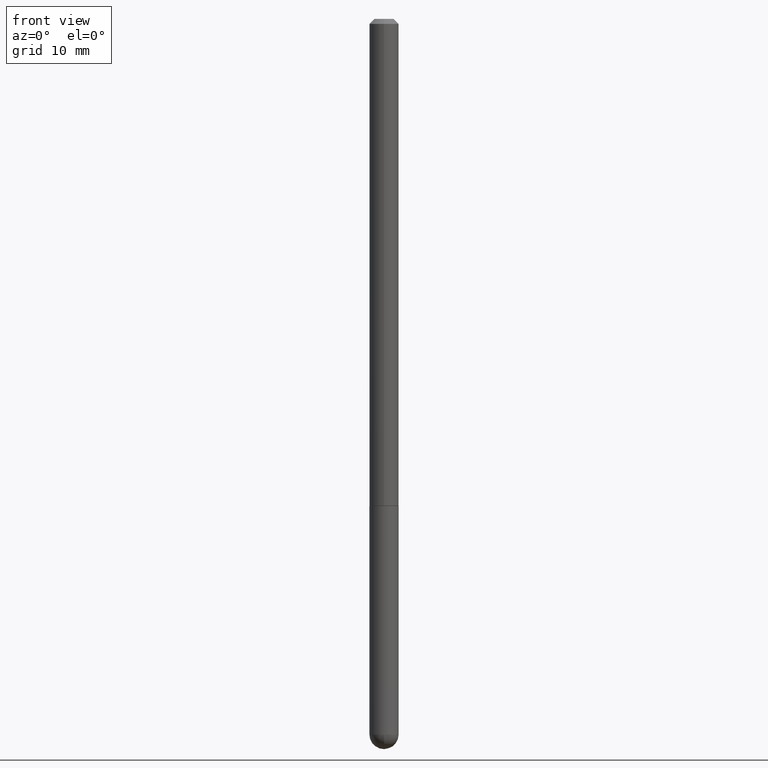
[diagram: clean part render]
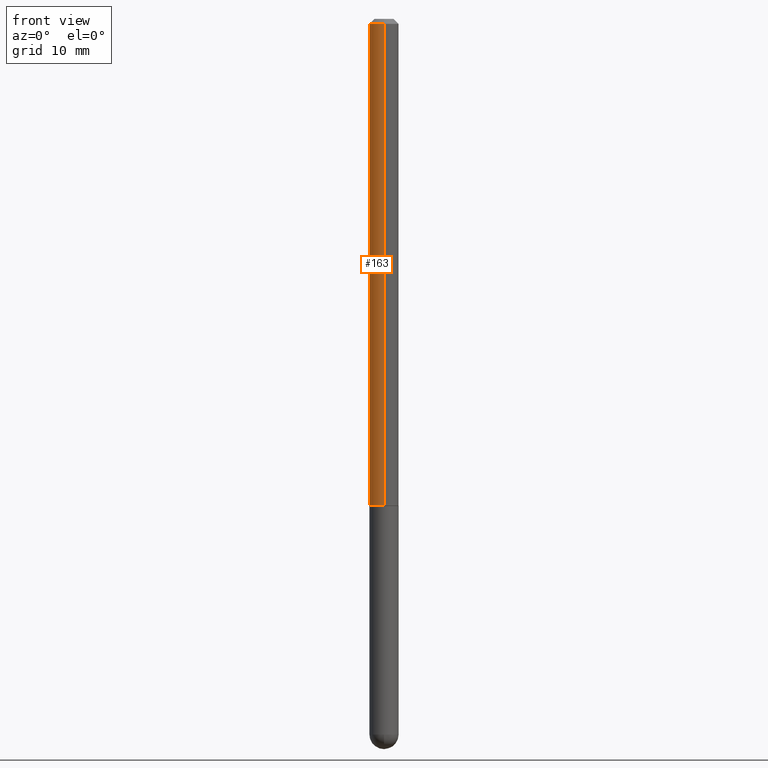
[diagram: same view with one face highlighted and labeled with its STEP entity id]
A machine part, front view. The second image highlights one B-rep face of the part: STEP entity #163.
In plain terms, the highlighted cylindrical surface (edge-blend (fillet) strip) has radius 1.4999 mm, axis along (-0, 0, 1).
Its self-contained STEP definition (entity closure, byte-faithful):
#1 = CYLINDRICAL_SURFACE ( 'NONE', #202, 0.05905000000000010935 ) ;
#15 = CARTESIAN_POINT ( 'NONE',  ( 4.195754854663646379E-16, 0.05904999999999335780, -1.967500000000000027 ) ) ;
#27 = EDGE_CURVE ( 'NONE', #178, #187, #145, .T. ) ;
#39 = EDGE_LOOP ( 'NONE', ( #292, #289, #359, #100 ) ) ;
#58 = CIRCLE ( 'NONE', #343, 0.05905000000000001914 ) ;
#77 = CARTESIAN_POINT ( 'NONE',  ( 4.123439461173745750E-16, 0.05904999999999994975, -0.02000000000000027450 ) ) ;
#88 = DIRECTION ( 'NONE',  ( -2.452606242276133797E-29, 3.481260124123203654E-15, 1.000000000000000000 ) ) ;
#91 = EDGE_CURVE ( 'NONE', #267, #364, #245, .T. ) ;
#100 = ORIENTED_EDGE ( 'NONE', *, *, #347, .F. ) ;
#112 = EDGE_CURVE ( 'NONE', #178, #267, #375, .T. ) ;
#128 = DIRECTION ( 'NONE',  ( -2.452606242276133797E-29, 3.481260124123203654E-15, 1.000000000000000000 ) ) ;
#137 = DIRECTION ( 'NONE',  ( -2.452606242276133797E-29, 3.481260124123203654E-15, 1.000000000000000000 ) ) ;
#145 = LINE ( 'NONE', #203, #217 ) ;
#161 = CARTESIAN_POINT ( 'NONE',  ( 0.000000000000000000, 0.000000000000000000, 0.000000000000000000 ) ) ;
#163 = ADVANCED_FACE ( 'NONE', ( #166 ), #1, .T. ) ;
#166 = FACE_OUTER_BOUND ( 'NONE', #39, .T. ) ;
#178 = VERTEX_POINT ( 'NONE', #15 ) ;
#187 = VERTEX_POINT ( 'NONE', #77 ) ;
#202 = AXIS2_PLACEMENT_3D ( 'NONE', #161, #137, #257 ) ;
#203 = CARTESIAN_POINT ( 'NONE',  ( 4.195754854663398874E-16, 0.05905000000000010935, -2.055684103294755676E-16 ) ) ;
#213 = DIRECTION ( 'NONE',  ( -6.982962677686265922E-15, -1.000000000000000000, 4.626330217890353559E-15 ) ) ;
#216 = CARTESIAN_POINT ( 'NONE',  ( -4.123439461173747722E-16, -0.05905000000000010935, 2.055684103294755676E-16 ) ) ;
#217 = VECTOR ( 'NONE', #325, 39.37007874015748143 ) ;
#245 = LINE ( 'NONE', #216, #276 ) ;
#257 = DIRECTION ( 'NONE',  ( -6.982962677686265922E-15, -1.000000000000000000, 3.481260124123203654E-15 ) ) ;
#267 = VERTEX_POINT ( 'NONE', #333 ) ;
#273 = CARTESIAN_POINT ( 'NONE',  ( 4.825502781678292621E-29, -6.849379294212400691E-15, -1.967499999999999805 ) ) ;
#276 = VECTOR ( 'NONE', #363, 39.37007874015748143 ) ;
#289 = ORIENTED_EDGE ( 'NONE', *, *, #112, .T. ) ;
#292 = ORIENTED_EDGE ( 'NONE', *, *, #27, .F. ) ;
#309 = AXIS2_PLACEMENT_3D ( 'NONE', #273, #88, #213 ) ;
#325 = DIRECTION ( 'NONE',  ( -2.452606242276134078E-29, 3.481260124123204048E-15, 1.000000000000000000 ) ) ;
#333 = CARTESIAN_POINT ( 'NONE',  ( -4.123439461173271448E-16, -0.05905000000000704824, -1.967499999999999361 ) ) ;
#343 = AXIS2_PLACEMENT_3D ( 'NONE', #410, #128, #373 ) ;
#347 = EDGE_CURVE ( 'NONE', #187, #364, #58, .T. ) ;
#359 = ORIENTED_EDGE ( 'NONE', *, *, #91, .T. ) ;
#363 = DIRECTION ( 'NONE',  ( -2.452606242276134078E-29, 3.481260124123204048E-15, 1.000000000000000000 ) ) ;
#364 = VERTEX_POINT ( 'NONE', #368 ) ;
#368 = CARTESIAN_POINT ( 'NONE',  ( -4.051124067684085231E-16, -0.05905000000000008159, -0.01999999999999986511 ) ) ;
#373 = DIRECTION ( 'NONE',  ( -6.982962677686265922E-15, -1.000000000000000000, 3.469747663417776213E-15 ) ) ;
#375 = CIRCLE ( 'NONE', #309, 0.05905000000000020649 ) ;
#410 = CARTESIAN_POINT ( 'NONE',  ( 4.905212484552284025E-31, -6.962520248246431022E-17, -0.02000000000000006981 ) ) ;